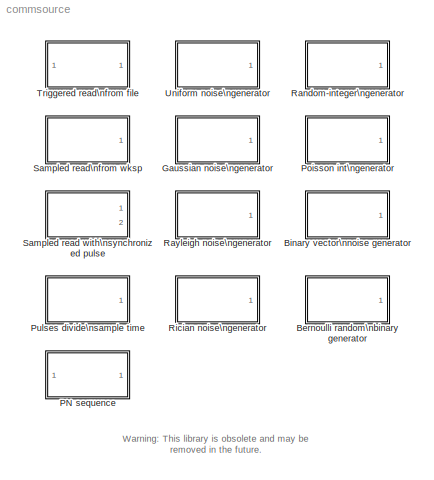
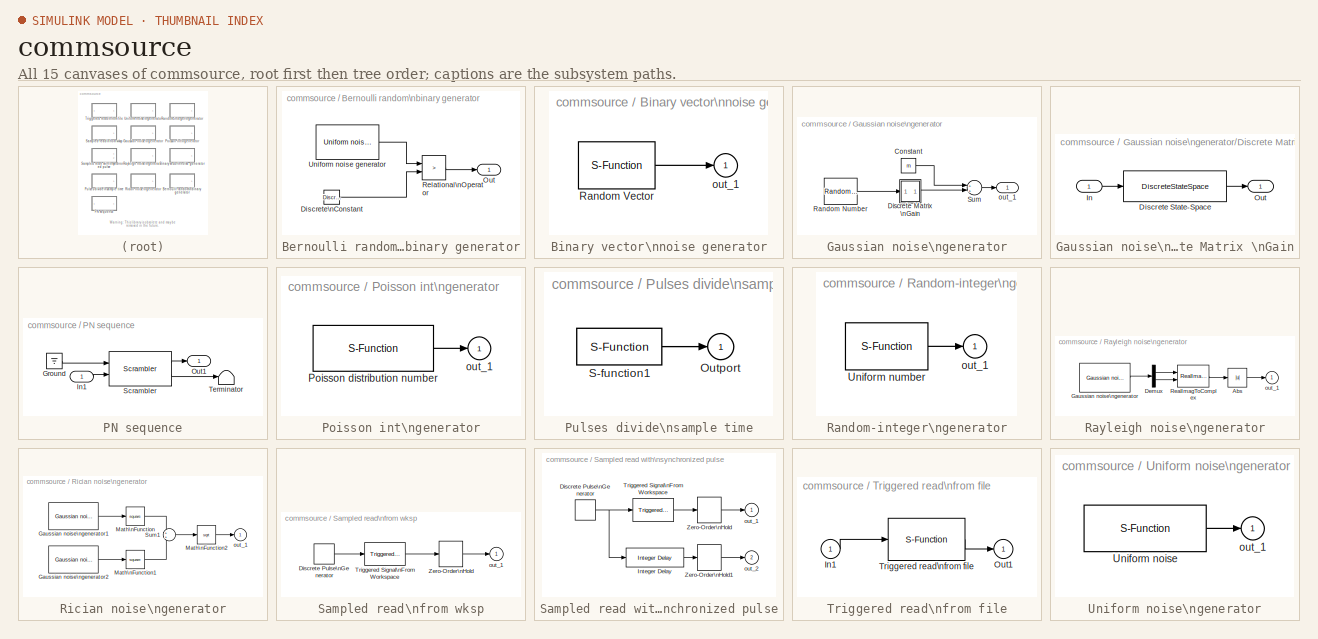
[diagram: thumbnail index - all 15 canvases of the model, root first then tree order]
MODEL commsource
KIND library
BLOCK [SubSystem] Bernoulli random\nbinary generator
  MaskCallbackString = ||
  MaskDescription = Generate a Bernoulli random binary number.  \nTo generate a vector output, specify the probability as a vector.
  MaskDisplay = plot(0,0,100,100,x,y);disp('Bernoulli bin')
  MaskEnableString = on,on,on
  MaskHelp = The Bernoulli binary random number generator outputs random binary numbers. The first parameter is the probability of a zero. This parameter can be specified as a vector to produce an output vector of the same size. The seed can be either a scalar or a vector of the same size as the probability vector.
  MaskIconFrame = on
  MaskIconOpaque = on
  MaskIconRotate = none
  MaskIconUnits = autoscale
  MaskInitialization = [L,U,Seed,x,y]=commblkbernoullisrc(gcb,'init',{P,Seed});
  MaskPromptString = Probability of a zero:|Seed:|Sample time (s):
  MaskSelfModifiable = on
  MaskStyleString = edit,edit,edit
  MaskToolTipString = on,on,on
  MaskTunableValueString = on,on,on
  MaskType = Bernoulli binary random number generator
  MaskValueString = [0.1 0.5]|[1 2]|1
  MaskVarAliasString = ,,
  MaskVariables = P=@1;Seed=@2;Ts=@3;
  MaskVisibilityString = on,on,on
  Ports = [0, 1]
  TreatAsAtomicUnit = off
BLOCK [Reference] Bernoulli random\nbinary generator/Discrete\nConstant  REF=dspsrcs2/Discrete\nConstant
  Ports = [0, 1]
  SourceBlock = dspsrcs2/Discrete\nConstant
  SourceType = Discrete Constant
  Ts = Ts
  Value = P
BLOCK [Outport] Bernoulli random\nbinary generator/Out
BLOCK [RelationalOperator] Bernoulli random\nbinary generator/Relational\nOperator
  Operator = >
BLOCK [Reference] Bernoulli random\nbinary generator/Uniform noise generator  REF=commsource/Uniform noise\ngenerator
  Ports = [0, 1]
  SourceBlock = commsource/Uniform noise\ngenerator
  SourceType = Uniform noise generator
  Ts = Ts
  low = L
  seed = Seed
  up = U
BLOCK [SubSystem] Binary vector\nnoise generator
  MaskCallbackString = |||
  MaskDescription = Generate a binary vector with control over the number of  \"1\"s.
  MaskDisplay = plot(0,0,100,100,x,y);disp('B-vector')
  MaskEnableString = on,on,on,on
  MaskHelp = This block outputs a zero vector with \"1\"s randomly distributed the vector. The maximum number of \"1\"s in the vector is the same as the length of the vector probability. The value of the ith element of the probability is the probability of i number of \"1\"s in the vector, e.g. [1/4 1/4 1/4] means probability of single \"1\", double \"1\"s, three \"1\"s or no \"1\" in the vector is 1/4.
  MaskIconFrame = on
  MaskIconOpaque = on
  MaskIconRotate = none
  MaskIconUnits = autoscale
  MaskInitialization = [x,y]=commblkrandbitsrc(gcb,'init');
  MaskPromptString = Binary vector length:|Probability of a \"one\", two \"ones\",three \"ones\"...:|Seed:|Sample time (s):
  MaskStyleString = edit,edit,edit,edit
  MaskToolTipString = on,on,on,on
  MaskTunableValueString = on,on,on,on
  MaskType = Binary noise generator
  MaskValueString = 7|0.5|12345|1
  MaskVarAliasString = ,,,
  MaskVariables = n=@1;prob=@2;seed=@3;Ts=@4;
  MaskVisibilityString = on,on,on,on
  Ports = [0, 1]
  TreatAsAtomicUnit = off
BLOCK [S-Function] Binary vector\nnoise generator/Random Vector
  FunctionName = scomrbitsrc
  Parameters = n, prob, seed,Ts
  Ports = [0, 1]
BLOCK [Outport] Binary vector\nnoise generator/out_1
  InitialOutput = 0
BLOCK [SubSystem] Gaussian noise\ngenerator
  MaskCallbackString = |||
  MaskDescription = Generate Gaussian distributed noise with given mean and variance value.
  MaskDisplay = plot(0,0,100,100,[95 5 10 10 10 (100-15)*[0:1/30:1]+10],[75 75 75 70 95 randn(1,31)*10+75]);\ndisp('\\nGaussian')
  MaskEnableString = on,on,on,on
  MaskHelp = When the mean value and seed are vectors, the output of this block is a vector. The length of the vector is the same as the length of the mean value vector or the length of the seed. When the variance entry is a vector, the variance is a diagonal matrix.
  MaskIconFrame = on
  MaskIconOpaque = on
  MaskIconRotate = none
  MaskIconUnits = autoscale
  MaskInitialization = [m,d,s]=commblkgaussiansrc(gcb,'init',{m,d,s});\n
  MaskPromptString = Mean value:|Variance (vector or matrix):|Initial seed:|Sample time (s):
  MaskSelfModifiable = on
  MaskStyleString = edit,edit,edit,edit
  MaskToolTipString = on,on,on,on
  MaskTunableValueString = on,on,on,on
  MaskType = Gaussian noise generator
  MaskValueString = [0 1]|[1 2]|[100 200]|1
  MaskVarAliasString = ,,,
  MaskVariables = m=@1;d=@2;s=@3;Ts=@4;
  MaskVisibilityString = on,on,on,on
  Ports = [0, 1]
  TreatAsAtomicUnit = off
BLOCK [Constant] Gaussian noise\ngenerator/Constant
  Value = m
BLOCK [SubSystem] Gaussian noise\ngenerator/Discrete Matrix \nGain
  MaskCallbackString = |
  MaskDisplay = disp('K')
  MaskEnableString = on,on
  MaskIconFrame = on
  MaskIconOpaque = on
  MaskIconRotate = none
  MaskIconUnits = autoscale
  MaskPromptString = Gain Matrix:|Sample time (s):
  MaskStyleString = edit,edit
  MaskToolTipString = on,on
  MaskTunableValueString = on,on
  MaskType = Discrete Matrix Gain
  MaskValueString = d|Ts
  MaskVarAliasString = ,
  MaskVariables = K=@1;Ts=@2;
  MaskVisibilityString = on,on
  Ports = [1, 1]
  TreatAsAtomicUnit = off
BLOCK [DiscreteStateSpace] Gaussian noise\ngenerator/Discrete Matrix \nGain/Discrete State-Space
  A = []
  B = []
  C = []
  D = K
  SampleTime = Ts
BLOCK [Inport] Gaussian noise\ngenerator/Discrete Matrix \nGain/In
BLOCK [Outport] Gaussian noise\ngenerator/Discrete Matrix \nGain/Out
BLOCK [RandomNumber] Gaussian noise\ngenerator/Random Number
  SampleTime = Ts
  Seed = s
BLOCK [Sum] Gaussian noise\ngenerator/Sum
  Ports = [2, 1]
BLOCK [Outport] Gaussian noise\ngenerator/out_1
  InitialOutput = 0
BLOCK [SubSystem] PN sequence
  MaskCallbackString = ||
  MaskDescription = This block outputs a sequence of pseudorandom symbols. The rising edge of the input synchronization pulse triggers the register shifting in the block to update the output.
  MaskDisplay = disp('Pseudorandom\\nsequence\\ngenerator')\nplot(0,0,100,100,[5 10 10 8 10 12 10 10 15]-5,[5 5 12 8 12 8 12 15 15]+40)
  MaskEnableString = on,on,on
  MaskHelp = A pseudorandom sequence can be used for a direct sequence spread spectrum system. Its operation is based on a generator polynomial g(x).  You can specify the polynomial using the coefficients of the polynomial or by specifying the terms for which the coefficient is 1; for other terms, the coefficient is the default, 0. For example g = [1 0 0 0 0 0 1 0 1] and g = [0 -6 -8] represent the same polyno...<+140ch>
  MaskIconFrame = on
  MaskIconOpaque = on
  MaskIconRotate = none
  MaskIconUnits = autoscale
  MaskInitialization = if M<=0, error('Scramble calculation base must be a positive integer.'); end\nif max(poly)>=M\n error('Scramble polynomial coefficients must be less than calculation base.');\nelseif min(poly)<0\n  tmp = zeros(1, abs(min(poly))+1);\n  for i = 1:length(poly), tmp(abs(poly(i))+1) = 1; end\n  poly = tmp;\nend\nif poly(1) == 0, poly(1) = 1; end\ns = length(poly)-1;
  MaskPromptString = Calculation base:|Generator polynomial:|Initial states
  MaskStyleString = edit,edit,edit
  MaskToolTipString = on,on,on
  MaskTunableValueString = on,on,on
  MaskType = Pseudorandom sequence generator
  MaskValueString = 2|[0 -5 -6]|[1 1 0 1 0 1]
  MaskVarAliasString = ,,
  MaskVariables = M=@1;poly=@2;ini_sta=@3;
  MaskVisibilityString = on,on,on
  Ports = [1, 1]
  TreatAsAtomicUnit = off
BLOCK [Ground] PN sequence/Ground
BLOCK [Inport] PN sequence/In1
BLOCK [Outport] PN sequence/Out1
  InitialOutput = 0
BLOCK [Reference] PN sequence/Scrambler  REF=commutil/Scrambler
  M = M
  Ports = [2, 2]
  SourceBlock = commutil/Scrambler
  SourceType = Scrambler
  ini_sta = ini_sta
  poly = poly
BLOCK [Terminator] PN sequence/Terminator
BLOCK [SubSystem] Poisson int\ngenerator
  MaskCallbackString = ||
  MaskDescription = Generate Poisson distributed random integers.
  MaskDisplay = plot(0,0,100,100,x,y);disp('Poisson int')
  MaskEnableString = on,on,on
  MaskHelp = This block generates Poisson distributed integer values. The output size is the same as the seed vector size. The variance and mean value equal to Lambda. Add a limiter to the output of this block to generate binary noise.
  MaskIconFrame = on
  MaskIconOpaque = on
  MaskIconRotate = none
  MaskIconUnits = autoscale
  MaskInitialization = [x,y]=commblkpoissonsrc(gcb,'init');\n
  MaskPromptString = Lambda:|Seed:|Sample time (s):
  MaskSelfModifiable = on
  MaskStyleString = edit,edit,edit
  MaskToolTipString = on,on,on
  MaskTunableValueString = on,on,on
  MaskType = Poisson random integer generator
  MaskValueString = [0.1 3]|[1 2]|1
  MaskVarAliasString = ,,
  MaskVariables = lambda=@1;seed=@2;Ts=@3;
  MaskVisibilityString = on,on,on
  Ports = [0, 1]
  TreatAsAtomicUnit = off
BLOCK [S-Function] Poisson int\ngenerator/Poisson distribution number
  FunctionName = scompoissrc
  Parameters = seed,lambda,Ts
  Ports = [0, 1]
BLOCK [Outport] Poisson int\ngenerator/out_1
  InitialOutput = 0
BLOCK [SubSystem] Pulses divide\nsample time
  MaskCallbackString = ||
  MaskDescription = Vector pulses with sample rate of each pulse as \nSample_time / Divider.
  MaskDisplay = plot(0,0,100,100,x,y);disp('Pulse')
  MaskEnableString = on,on,on
  MaskHelp = This block generates a vector pulse. The output length is the same as the divider vector length. The ith element of the output has the sample time Sample_time/Divider(i). All elements in divider must be integers.
  MaskIconFrame = on
  MaskIconOpaque = on
  MaskIconRotate = none
  MaskIconUnits = autoscale
  MaskInitialization = [x,y]=srcsicon(2);\n
  MaskPromptString = Sample time (scalar, sec):|Divider (integer vector):|Offset (same length as Divider):
  MaskStyleString = edit,edit,edit
  MaskToolTipString = on,on,on
  MaskTunableValueString = on,on,on
  MaskType = Pulse generator
  MaskValueString = 1|[1 3 5 1 3 5]|[0 0 0 4.1 2.1 4.1]
  MaskVarAliasString = ,,
  MaskVariables = samp_time=@1;out_divid=@2;offset=@3;
  MaskVisibilityString = on,on,on
  Ports = [0, 1]
  TreatAsAtomicUnit = off
BLOCK [Outport] Pulses divide\nsample time/Outport
  InitialOutput = 0
BLOCK [S-Function] Pulses divide\nsample time/S-function1
  FunctionName = homopuls
  Parameters = samp_time, out_divid, offset
  Ports = [0, 1]
BLOCK [SubSystem] Random-integer\ngenerator
  MaskCallbackString = ||
  MaskDescription = Generate integers randomly distributed in range [0, M-1], where M is the M-ary number.
  MaskDisplay = plot(0,0,100,100,x,y);disp('Random int')
  MaskEnableString = on,on,on
  MaskHelp = This block generates an integer number in the range [0 M-1], where M is the M-ary number. The probability of the appearance for each number is equal.
  MaskIconFrame = on
  MaskIconOpaque = on
  MaskIconRotate = none
  MaskIconUnits = autoscale
  MaskInitialization = [x,y]=commblkrandintsrc(gcb,'init');\n
  MaskPromptString = M-ary number:|Seed:|Sample time (s):
  MaskSelfModifiable = on
  MaskStyleString = edit,edit,edit
  MaskToolTipString = on,on,on
  MaskTunableValueString = on,on,on
  MaskType = Random integer generator
  MaskValueString = 8|[1 2]|1
  MaskVarAliasString = ,,
  MaskVariables = mul=@1;seed=@2;Ts=@3;
  MaskVisibilityString = on,on,on
  Ports = [0, 1]
  TreatAsAtomicUnit = off
BLOCK [S-Function] Random-integer\ngenerator/Uniform number
  FunctionName = scomrintsrc
  Parameters = seed,mul,Ts
  Ports = [0, 1]
BLOCK [Outport] Random-integer\ngenerator/out_1
  InitialOutput = 0
BLOCK [SubSystem] Rayleigh noise\ngenerator
  MaskCallbackString = ||
  MaskDescription = Generate Rayleigh distributed noise.The output vector size of this block is the same as the vector size of the seed.
  MaskDisplay = plot(0,0,100,100,[95 5 10 10 10 (100-15)*[0:1/30:1]+10],[75 75 75 70 95 rand(1,31)*20+75]);disp('Rayleigh')
  MaskEnableString = on,on,on
  MaskHelp = This block generates Rayleigh noise with the given sigma value. The sigma value is the standard deviations of the zero mean Gaussian noise components in generating the Rayleigh noise. The output vector size of this block is the same as the vector size of the seed.
  MaskIconFrame = on
  MaskIconOpaque = on
  MaskIconRotate = none
  MaskIconUnits = autoscale
  MaskInitialization = [alpha,seed]=commblkrayleighsrc(gcb,'init',{alpha,seed});
  MaskPromptString = sigma:|Initial seed:|Sample time (s):
  MaskSelfModifiable = on
  MaskStyleString = edit,edit,edit
  MaskToolTipString = on,on,on
  MaskTunableValueString = on,on,on
  MaskType = Rayleigh noise generator
  MaskValueString = 1|17658|1
  MaskVarAliasString = ,,
  MaskVariables = alpha=@1;seed=@2;Ts=@3;
  MaskVisibilityString = on,on,on
  Ports = [0, 1]
  TreatAsAtomicUnit = off
BLOCK [Abs] Rayleigh noise\ngenerator/Abs
BLOCK [Demux] Rayleigh noise\ngenerator/Demux
  Outputs = 2
  Ports = [1, 2]
BLOCK [Reference] Rayleigh noise\ngenerator/Gaussian noise\ngenerator  REF=commsource/Gaussian noise\ngenerator
  Ports = [0, 1]
  SourceBlock = commsource/Gaussian noise\ngenerator
  SourceType = Gaussian noise generator
  Ts = Ts
  d = alpha
  m = 0
  s = seed
BLOCK [RealImagToComplex] Rayleigh noise\ngenerator/RealImagToComplex
  Input = Real and imag
  Ports = [2, 1]
BLOCK [Outport] Rayleigh noise\ngenerator/out_1
  InitialOutput = 0
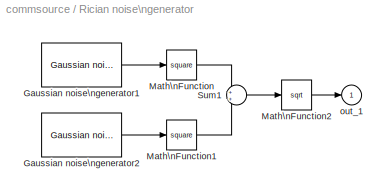
BLOCK [SubSystem] Rician noise\ngenerator
  MaskCallbackString = commblkriciansrc(gcb,'SpecMethod');||||||
  MaskDescription = Generate Rician distributed noise. The output vector size of this block is the same as the vector size of the seed.
  MaskDisplay = plot(0,0,100,100,[95 5 10 10 10 (100-15)*[0:1/30:1]+10],[75 75 75 70 95 rand(1,31)*20+75]);\ndisp('Rician');
  MaskEnableString = on,off,off,on,on,on,on
  MaskHelp = The Rician noise is composed with two independant Gaussian noises. These two Gaussain noises have a same std, sigma. Their mean values are m1 and m2 respectively. \n\nWhere where Rician K-factor is used, K-Factor=(m1^2+m2^2)/2/sigma^2. \n\nThe output vector size of this block is the same as the vector size of the seed.
  MaskIconFrame = on
  MaskIconOpaque = on
  MaskIconRotate = none
  MaskIconUnits = autoscale
  MaskInitialization = [m1, m2]=commblkriciansrc(gcb,'init',{iMean, qMean, K, s});\n
  MaskPromptString = Specification method:|In phase component (mean):|Quadrature component (mean):|Rician K-factor:|sigma:|Seed:|Sample time (s):
  MaskStyleString = popup(K-factor|Quadrature components),edit,edit,edit,edit,edit,edit
  MaskToolTipString = on,on,on,on,on,on,on
  MaskTunableValueString = on,on,on,on,on,on,on
  MaskType = Rician noise generator
  MaskValueString = K-factor|sqrt(2)|sqrt(2)|2|1|12345|1
  MaskVarAliasString = ,,,,,,
  MaskVariables = specMethod=@1;iMean=@2;qMean=@3;K=@4;s=@5;seed=@6;Ts=@7;
  MaskVisibilityString = on,off,off,on,on,on,on
  Ports = [0, 1]
  TreatAsAtomicUnit = off
BLOCK [Reference] Rician noise\ngenerator/Gaussian noise\ngenerator1  REF=commsource/Gaussian noise\ngenerator
  Ports = [0, 1]
  SourceBlock = commsource/Gaussian noise\ngenerator
  SourceType = Gaussian noise generator
  Ts = Ts
  d = s
  m = m1
  s = seed
BLOCK [Reference] Rician noise\ngenerator/Gaussian noise\ngenerator2  REF=commsource/Gaussian noise\ngenerator
  Ports = [0, 1]
  SourceBlock = commsource/Gaussian noise\ngenerator
  SourceType = Gaussian noise generator
  Ts = Ts
  d = s
  m = m2
  s = seed+max(seed)
BLOCK [Math] Rician noise\ngenerator/Math\nFunction
  Operator = square
  Ports = [1, 1]
BLOCK [Math] Rician noise\ngenerator/Math\nFunction1
  Operator = square
  Ports = [1, 1]
BLOCK [Math] Rician noise\ngenerator/Math\nFunction2
  Operator = sqrt
  Ports = [1, 1]
BLOCK [Sum] Rician noise\ngenerator/Sum1
  IconShape = round
  Ports = [2, 1]
BLOCK [Outport] Rician noise\ngenerator/out_1
  InitialOutput = 0
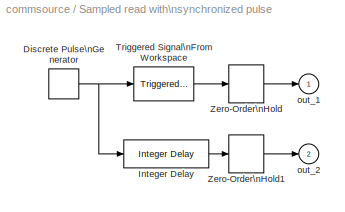
BLOCK [SubSystem] Sampled read with\nsynchronized pulse
  MaskCallbackString = ||
  MaskDescription = Read from a workspace variable at a specified sampling interval.
  MaskDisplay = plot(0,0,100,100,[5+[20 20 0 0 2 7 2 7 2 7 12 7 12 7 20 20],[0:1/30:1]*70+25],[10 20 20 0 0 9 16 9 0 0 9 16 9 0 0 8,sin(6.28*[0:1/30:1])*10+10]+65,x,y); disp('\\nRd wksp')
  MaskEnableString = on,on,on
  MaskHelp = This block reads from a workspace variable at a given sample time. If the workspace variable is a matrix, the size of the block output vector corresponds to the number of columns in the matrix. If the \"Cyclic repeat\" box is checked, after reading the last row of the variable the block will  return to the first row of the variable.  Otherwise, the block will output zeros after reading the last ro...<+122ch>
  MaskIconFrame = on
  MaskIconOpaque = on
  MaskIconRotate = port
  MaskIconUnits = autoscale
  MaskInitialization = [x,y]=trigicon(1,75,get_param(gcb,'orientation'),2);\ncommblkreadwkspc;
  MaskPromptString = Signal:|Data output sample time (sec):|Cyclic repeat
  MaskSelfModifiable = on
  MaskStyleString = edit,edit,checkbox
  MaskToolTipString = on,on,on
  MaskTunableValueString = off,off,off
  MaskType = Sampled read from workspace with synchronized pulse
  MaskValueString = randint(300,1,2)|1|off
  MaskVarAliasString = ,,
  MaskVariables = X=@1;td=@2;cyc=@3;
  MaskVisibilityString = on,on,on
  Ports = [0, 2]
  TreatAsAtomicUnit = off
BLOCK [DiscretePulseGenerator] Sampled read with\nsynchronized pulse/Discrete Pulse\nGenerator
  SampleTime = ts/2
BLOCK [Reference] Sampled read with\nsynchronized pulse/Integer Delay  REF=dspbdsp2/Integer Delay
  Ports = [1, 1]
  SourceBlock = dspbdsp2/Integer Delay
  SourceType = Integer Delay
  delay = off>(ts/2)
  df = on
  frame = off
  ic = 0
  numChans = 1
BLOCK [Reference] Sampled read with\nsynchronized pulse/Triggered Signal\nFrom Workspace  REF=dspsrcs2/Triggered Signal\nFrom Workspace
  Ports = [1, 1]
  SourceBlock = dspsrcs2/Triggered Signal\nFrom Workspace
  SourceType = Triggered Signal From Workspace
  X = X
  cyclic = off
  ic = ic
  nsamps = SamplesPerFrame
  trigtype = Rising edge
BLOCK [ZeroOrderHold] Sampled read with\nsynchronized pulse/Zero-Order\nHold
  SampleTime = [ts off]
BLOCK [ZeroOrderHold] Sampled read with\nsynchronized pulse/Zero-Order\nHold1
  SampleTime = [ts/2 rem(off,ts/2)]
BLOCK [Outport] Sampled read with\nsynchronized pulse/out_1
  InitialOutput = 0
BLOCK [Outport] Sampled read with\nsynchronized pulse/out_2
  InitialOutput = 0
  Port = 2
BLOCK [SubSystem] Sampled read\nfrom wksp
  MaskCallbackString = ||
  MaskDescription = Read from a workspace variable at a specified sampling interval.
  MaskDisplay = plot(0,0,100,100,[5+[20 20 0 0 2 7 2 7 2 7 12 7 12 7 20 20],[0:1/30:1]*70+25],[10 20 20 0 0 9 16 9 0 0 9 16 9 0 0 8,sin(6.28*[0:1/30:1])*10+10]+65);disp('\\nRd wksp')
  MaskEnableString = on,on,on
  MaskHelp = This block reads from a workspace variable at a given sample time. If the workspace variable is a matrix, the size of the block output vector corresponds to the number of columns in the matrix. If the \"Cyclic repeat\" box is checked, after reading the last row of the variable the block will  return to the first row of the variable.  Otherwise, the block will output zeros after reading the last ro...<+18ch>
  MaskIconFrame = on
  MaskIconOpaque = on
  MaskIconRotate = none
  MaskIconUnits = autoscale
  MaskInitialization = commblkreadwkspc;
  MaskPromptString = Signal:|Data output sample time (sec):|Cyclic repeat
  MaskSelfModifiable = on
  MaskStyleString = edit,edit,checkbox
  MaskToolTipString = on,on,on
  MaskTunableValueString = off,off,off
  MaskType = Sampled read from workspace
  MaskValueString = randint(1000,1,2)|1|off
  MaskVarAliasString = ,,
  MaskVariables = X=@1;td=@2;cyc=@3;
  MaskVisibilityString = on,on,on
  Ports = [0, 1]
  TreatAsAtomicUnit = off
BLOCK [DiscretePulseGenerator] Sampled read\nfrom wksp/Discrete Pulse\nGenerator
  SampleTime = ts
BLOCK [Reference] Sampled read\nfrom wksp/Triggered Signal\nFrom Workspace  REF=dspsrcs2/Triggered Signal\nFrom Workspace
  Ports = [1, 1]
  SourceBlock = dspsrcs2/Triggered Signal\nFrom Workspace
  SourceType = Triggered Signal From Workspace
  X = X
  cyclic = off
  ic = ic
  nsamps = SamplesPerFrame
  trigtype = Either edge
BLOCK [ZeroOrderHold] Sampled read\nfrom wksp/Zero-Order\nHold
  SampleTime = [ts off]
BLOCK [Outport] Sampled read\nfrom wksp/out_1
  InitialOutput = 0
BLOCK [SubSystem] Triggered read\nfrom file
  MaskCallbackString = |||||
  MaskDescription = The rising edge of the signal from the 2nd port triggers the block to read the next row of the specified file.
  MaskDisplay = plot(0,0,100,100,[25 25 05 05 25 25 05 13 13 17 17 17 15 real(exp(j*pi*([0:20]/10+1/2)))*3.5+15 15 25 25 25+[0:1/30:1]*70], [85 95 95 75 75 89 89 89 95 95 89 89 89 imag(exp(j*pi*([0:20]/10+1/2)))*3.5+85 89 89 85 sin([0:1/30:1]*pi*2)*10+85]-10,x,y);\ndisp(' \\nRd file')
  MaskEnableString = on,on,on,on,on,on
  MaskHelp = This block reads the data from a file. The output is refreshed at the rising edge of the input pulse. When the end of the file (eof) is reached, you can have the block output all zeros or start from the beginning of the file.
  MaskIconFrame = on
  MaskIconOpaque = on
  MaskIconRotate = port
  MaskIconUnits = autoscale
  MaskInitialization = [x,y]=trigicon(0,50,get_param(gcb,'orientation'),2);\nnump = dec - 1;
  MaskPromptString = File name (string, include extension):|Data type ('ascii','float','integer'):|Decimation:|Output vector length:|Cyclic repeat|Threshold in detecting trigger signal:
  MaskStyleString = edit,edit,edit,edit,checkbox,edit
  MaskToolTipString = on,on,on,on,on,on
  MaskTunableValueString = on,on,on,on,on,on
  MaskType = Read from file
  MaskValueString = 'junk.tmp'|'ascii'|1|1|off|.3
  MaskVarAliasString = ,,,,,
  MaskVariables = filename=@1;datatype=@2;dec=@3;numout=@4;recursive=@5;threshold=@6;
  MaskVisibilityString = on,on,on,on,on,on
  Ports = [1, 1]
  TreatAsAtomicUnit = off
BLOCK [Inport] Triggered read\nfrom file/In1
BLOCK [Outport] Triggered read\nfrom file/Out1
  InitialOutput = 0
BLOCK [S-Function] Triggered read\nfrom file/Triggered read\nfrom file
  FunctionName = sreadfil
  Parameters = filename,datatype,nump,numout,recursive,threshold
  Ports = [1, 1]
BLOCK [SubSystem] Uniform noise\ngenerator
  MaskCallbackString = |||
  MaskDescription = Generate uniformly distributed noise between the upper and lower bounds.
  MaskDisplay = plot(0,0,100,100,[95 5 10 10 10 (100-15)*[0:1/30:1]+10],[75 75 75 70 95 rand(1,31)*20+75]);disp('Uniform')
  MaskEnableString = on,on,on,on
  MaskHelp = This block generates a uniformly distributed noise between the given lower and upper bounds. The output size is the same as the vector length of the seed. The upper bound and lower bound can be scalar or vectors with their lengths the same as the length for the seed. The vector length of upper bound must be the same as length of lower bound.
  MaskIconFrame = on
  MaskIconOpaque = on
  MaskIconRotate = none
  MaskIconUnits = autoscale
  MaskInitialization = commblkuniformsrc(gcb,'init');
  MaskPromptString = Noise lower bound:|Noise upper bound:|Seed:|Sample time (s):
  MaskSelfModifiable = on
  MaskStyleString = edit,edit,edit,edit
  MaskToolTipString = on,on,on,on
  MaskTunableValueString = on,on,on,on
  MaskType = Uniform noise generator
  MaskValueString = [0 1]|[1 2]|[12345 54321]|1
  MaskVarAliasString = ,,,
  MaskVariables = low=@1;up=@2;seed=@3;Ts=@4;
  MaskVisibilityString = on,on,on,on
  Ports = [0, 1]
  TreatAsAtomicUnit = off
BLOCK [S-Function] Uniform noise\ngenerator/Uniform noise
  FunctionName = scomunisrc
  Parameters = seed,up,low,Ts
  Ports = [0, 1]
BLOCK [Outport] Uniform noise\ngenerator/out_1
  InitialOutput = 0
ANNOTATION (root): Warning: This library is obsolete and may be\nremoved in the future.
LINE Bernoulli random\nbinary generator/Discrete\nConstant:1 -> Bernoulli random\nbinary generator/Relational\nOperator:2
LINE Bernoulli random\nbinary generator/Relational\nOperator:1 -> Bernoulli random\nbinary generator/Out:1
LINE Bernoulli random\nbinary generator/Uniform noise generator:1 -> Bernoulli random\nbinary generator/Relational\nOperator:1
LINE Binary vector\nnoise generator/Random Vector:1 -> Binary vector\nnoise generator/out_1:1
LINE Gaussian noise\ngenerator/Constant:1 -> Gaussian noise\ngenerator/Sum:1
LINE Gaussian noise\ngenerator/Discrete Matrix \nGain/Discrete State-Space:1 -> Gaussian noise\ngenerator/Discrete Matrix \nGain/Out:1
LINE Gaussian noise\ngenerator/Discrete Matrix \nGain/In:1 -> Gaussian noise\ngenerator/Discrete Matrix \nGain/Discrete State-Space:1
LINE Gaussian noise\ngenerator/Discrete Matrix \nGain:1 -> Gaussian noise\ngenerator/Sum:2
LINE Gaussian noise\ngenerator/Random Number:1 -> Gaussian noise\ngenerator/Discrete Matrix \nGain:1
LINE Gaussian noise\ngenerator/Sum:1 -> Gaussian noise\ngenerator/out_1:1
LINE PN sequence/Ground:1 -> PN sequence/Scrambler:1
LINE PN sequence/In1:1 -> PN sequence/Scrambler:2
LINE PN sequence/Scrambler:1 -> PN sequence/Out1:1
LINE PN sequence/Scrambler:2 -> PN sequence/Terminator:1
LINE Poisson int\ngenerator/Poisson distribution number:1 -> Poisson int\ngenerator/out_1:1
LINE Pulses divide\nsample time/S-function1:1 -> Pulses divide\nsample time/Outport:1
LINE Random-integer\ngenerator/Uniform number:1 -> Random-integer\ngenerator/out_1:1
LINE Rayleigh noise\ngenerator/Abs:1 -> Rayleigh noise\ngenerator/out_1:1
LINE Rayleigh noise\ngenerator/Demux:1 -> Rayleigh noise\ngenerator/RealImagToComplex:1
LINE Rayleigh noise\ngenerator/Demux:2 -> Rayleigh noise\ngenerator/RealImagToComplex:2
LINE Rayleigh noise\ngenerator/Gaussian noise\ngenerator:1 -> Rayleigh noise\ngenerator/Demux:1
LINE Rayleigh noise\ngenerator/RealImagToComplex:1 -> Rayleigh noise\ngenerator/Abs:1
LINE Rician noise\ngenerator/Gaussian noise\ngenerator1:1 -> Rician noise\ngenerator/Math\nFunction:1
LINE Rician noise\ngenerator/Gaussian noise\ngenerator2:1 -> Rician noise\ngenerator/Math\nFunction1:1
LINE Rician noise\ngenerator/Math\nFunction1:1 -> Rician noise\ngenerator/Sum1:2
LINE Rician noise\ngenerator/Math\nFunction2:1 -> Rician noise\ngenerator/out_1:1
LINE Rician noise\ngenerator/Math\nFunction:1 -> Rician noise\ngenerator/Sum1:1
LINE Rician noise\ngenerator/Sum1:1 -> Rician noise\ngenerator/Math\nFunction2:1
NET Sampled read with\nsynchronized pulse/Discrete Pulse\nGenerator:1 -> Sampled read with\nsynchronized pulse/Integer Delay:1, Sampled read with\nsynchronized pulse/Triggered Signal\nFrom Workspace:1
LINE Sampled read with\nsynchronized pulse/Integer Delay:1 -> Sampled read with\nsynchronized pulse/Zero-Order\nHold1:1
LINE Sampled read with\nsynchronized pulse/Triggered Signal\nFrom Workspace:1 -> Sampled read with\nsynchronized pulse/Zero-Order\nHold:1
LINE Sampled read with\nsynchronized pulse/Zero-Order\nHold1:1 -> Sampled read with\nsynchronized pulse/out_2:1
LINE Sampled read with\nsynchronized pulse/Zero-Order\nHold:1 -> Sampled read with\nsynchronized pulse/out_1:1
LINE Sampled read\nfrom wksp/Discrete Pulse\nGenerator:1 -> Sampled read\nfrom wksp/Triggered Signal\nFrom Workspace:1
LINE Sampled read\nfrom wksp/Triggered Signal\nFrom Workspace:1 -> Sampled read\nfrom wksp/Zero-Order\nHold:1
LINE Sampled read\nfrom wksp/Zero-Order\nHold:1 -> Sampled read\nfrom wksp/out_1:1
LINE Triggered read\nfrom file/In1:1 -> Triggered read\nfrom file/Triggered read\nfrom file:1
LINE Triggered read\nfrom file/Triggered read\nfrom file:1 -> Triggered read\nfrom file/Out1:1
LINE Uniform noise\ngenerator/Uniform noise:1 -> Uniform noise\ngenerator/out_1:1
note: NET lines group one-source signal fan-out (src -> all destinations, sorted); 1:1 wires keep LINE
